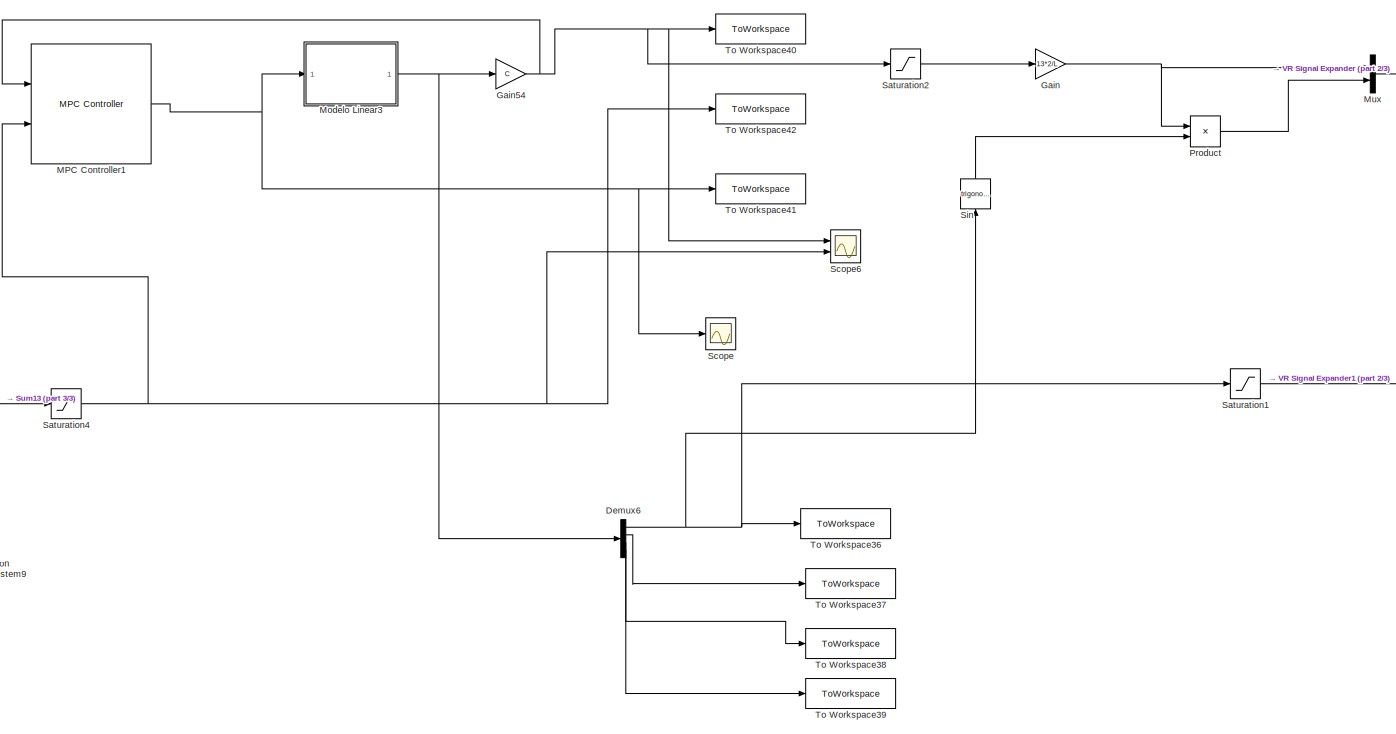
[diagram: root canvas - part 1/3, center side, full height]
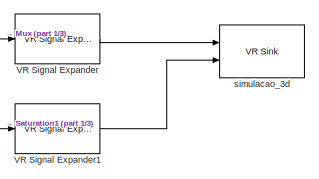
[diagram: root canvas - part 2/3, top right region]
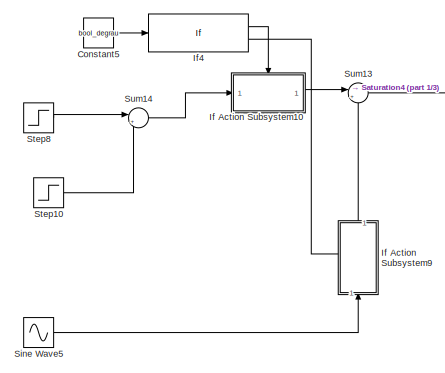
[diagram: root canvas - part 3/3, bottom left region]
MODEL slx_e6d9b0cb61ab
KIND model
CONFIG AbsTol = auto
CONFIG EnableMultiTasking = off
CONFIG FixedStep = auto
CONFIG MaxStep = auto
CONFIG MinStep = auto
CONFIG RelTol = 1e-3
CONFIG SampleTimeConstraint = Unconstrained
CONFIG SolverName = VariableStepAuto
CONFIG StartTime = 0
CONFIG StopTime = 100
BLOCK [Constant] Constant5
  Value = bool_degrau
BLOCK [Demux] Demux6
  Ports = [1, 4]
BLOCK [Gain] Gain
  Gain = 13*2/L
BLOCK [Gain] Gain54
  Gain = C
  Multiplication = Matrix(K*u)
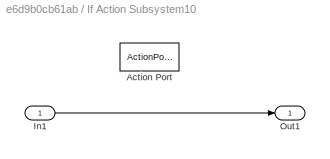
BLOCK [SubSystem] If Action Subsystem10
  Ports = [1, 1, 0, 0, 0, 0, 0, 1]
  RequestExecContextInheritance = off
  TreatAsAtomicUnit = on
BLOCK [ActionPort] If Action Subsystem10/Action Port
  ActionPortLabel = if(u1 == 1)
BLOCK [Inport] If Action Subsystem10/In1
BLOCK [Outport] If Action Subsystem10/Out1
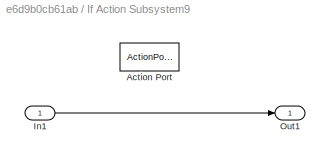
BLOCK [SubSystem] If Action Subsystem9
  NameLocation = right
  Ports = [1, 1, 0, 0, 0, 0, 0, 1]
  RequestExecContextInheritance = off
  TreatAsAtomicUnit = on
BLOCK [ActionPort] If Action Subsystem9/Action Port
  ActionPortLabel = else
BLOCK [Inport] If Action Subsystem9/In1
BLOCK [Outport] If Action Subsystem9/Out1
BLOCK [If] If4
  IfExpression = u1 == 1
  Ports = [1, 2]
BLOCK [Reference] MPC Controller1  REF=mpclib/MPC Controller  (lib defined in mdl_ae329e0e0455)
  Ports = [2, 1]
  SCDEnableBlockLinearizationSpecification = on
  SourceBlock = mpclib/MPC Controller
  SourceProductBaseCode = MP
  SourceType = MPC
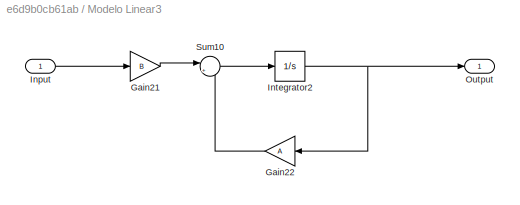
BLOCK [SubSystem] Modelo Linear3
  Ports = [1, 1]
  RequestExecContextInheritance = off
BLOCK [Gain] Modelo Linear3/Gain21
  Gain = B
  Multiplication = Matrix(K*u)
BLOCK [Gain] Modelo Linear3/Gain22
  Gain = A
  Multiplication = Matrix(K*u)
  NameLocation = top
BLOCK [Inport] Modelo Linear3/Input
BLOCK [Integrator] Modelo Linear3/Integrator2
  Ports = [1, 1]
BLOCK [Outport] Modelo Linear3/Output
BLOCK [Sum] Modelo Linear3/Sum10
  Inputs = |++
  Ports = [2, 1]
BLOCK [Mux] Mux
  DisplayOption = bar
  Inputs = 2
  Ports = [2, 1]
BLOCK [Product] Product
  Ports = [2, 1]
BLOCK [Saturate] Saturation1
  LowerLimit = -0.8
  UpperLimit = 0.8
BLOCK [Saturate] Saturation2
  LowerLimit = 0
  UpperLimit = L/2
BLOCK [Saturate] Saturation4
  LowerLimit = -L/2
  UpperLimit = L/2
BLOCK [Scope] Scope
  Floating = off
  NumInputPorts = 1
  Ports = [1]
  ScopeSpecificationString = Simulink.scopes.TimeScopeBlockCfg('CurrentConfiguration', extmgr.ConfigurationSet(extmgr.Configuration('Core','General UI',true),extmgr.Configuration('Core','Source UI',true),extmgr.Configuration('Sources','WiredSimulink',true,'DataLoggingVariableName','ScopeData1'),extmgr.Configuration('Visuals','Time Domain',true,'SerializedDisplays',{struct('MinYLimReal','-0.5832','MaxYLimReal','1.01571','YLabe...<+1445ch>
BLOCK [Scope] Scope6
  Floating = off
  NumInputPorts = 2
  Ports = [2]
  ScopeSpecificationString = Simulink.scopes.TimeScopeBlockCfg('CurrentConfiguration', extmgr.ConfigurationSet(extmgr.Configuration('Core','General UI',true),extmgr.Configuration('Core','Source UI',true),extmgr.Configuration('Sources','WiredSimulink',true),extmgr.Configuration('Visuals','Time Domain',true,'SerializedDisplays',{struct('MinYLimReal','-0.03049','MaxYLimReal','0.2744','YLabelReal','','MinYLimMag','0.00000','MaxYL...<+1365ch>
BLOCK [Trigonometry] Sin
  NameLocation = right
  Ports = [1, 1]
BLOCK [Sin] Sine Wave5
  Amplitude = amplitude_entrada
  Frequency = 0.1
  Ports = [0, 1]
  SampleTime = 0
BLOCK [Step] Step10
  After = -2*amplitude_entrada
  SampleTime = 0
  Time = 100
BLOCK [Step] Step8
  After = amplitude_entrada
  SampleTime = 0
BLOCK [Sum] Sum13
  Inputs = |++
  Ports = [2, 1]
BLOCK [Sum] Sum14
  Inputs = |++
  Ports = [2, 1]
BLOCK [ToWorkspace] To Workspace36
  FixptAsFi = on
  MaxDataPoints = inf
  Ports = [1]
  SampleTime = -1
  SaveFormat = Timeseries
  VariableName = output_estados_1
BLOCK [ToWorkspace] To Workspace37
  FixptAsFi = on
  MaxDataPoints = inf
  Ports = [1]
  SampleTime = -1
  SaveFormat = Timeseries
  VariableName = output_estados_2
BLOCK [ToWorkspace] To Workspace38
  FixptAsFi = on
  MaxDataPoints = inf
  Ports = [1]
  SampleTime = -1
  SaveFormat = Timeseries
  VariableName = output_estados_3
BLOCK [ToWorkspace] To Workspace39
  FixptAsFi = on
  MaxDataPoints = inf
  Ports = [1]
  SampleTime = -1
  SaveFormat = Timeseries
  VariableName = output_estados_4
BLOCK [ToWorkspace] To Workspace40
  FixptAsFi = on
  MaxDataPoints = inf
  Ports = [1]
  SampleTime = -1
  SaveFormat = Timeseries
  VariableName = y_output
BLOCK [ToWorkspace] To Workspace41
  FixptAsFi = on
  MaxDataPoints = inf
  Ports = [1]
  SampleTime = -1
  SaveFormat = Timeseries
  VariableName = acao_controle
BLOCK [ToWorkspace] To Workspace42
  FixptAsFi = on
  MaxDataPoints = inf
  Ports = [1]
  SampleTime = -1
  SaveFormat = Timeseries
  VariableName = u_output
BLOCK [Reference] VR Signal Expander  REF=vrlib/VR Signal Expander
  Ports = [1, 1]
  SourceBlock = vrlib/VR Signal Expander
  SourceProductBaseCode = SL
  SourceType = VR Signal Expander
BLOCK [Reference] VR Signal Expander1  REF=vrlib/VR Signal Expander
  Ports = [1, 1]
  SourceBlock = vrlib/VR Signal Expander
  SourceProductBaseCode = SL
  SourceType = VR Signal Expander
BLOCK [Reference] simulacao_3d  REF=vrlib/VR Sink
  InstantiateOnLoad = on
  Ports = [2]
  SourceBlock = vrlib/VR Sink
  SourceProductBaseCode = SL
  SourceType = Virtual Reality Sink
LINE Constant5:1 -> If4:1
NET Demux6:1 -> Saturation1:1, Sin:1, To Workspace36:1
LINE Demux6:2 -> To Workspace37:1
LINE Demux6:3 -> To Workspace38:1
LINE Demux6:4 -> To Workspace39:1
NET Gain54:1 -> MPC Controller1:1, Saturation2:1, Scope6:1, To Workspace40:1
NET Gain:1 -> Mux:1, Product:1
LINE If Action Subsystem10/In1:1 -> If Action Subsystem10/Out1:1
LINE If Action Subsystem10:1 -> Sum13:1
LINE If Action Subsystem9/In1:1 -> If Action Subsystem9/Out1:1
LINE If Action Subsystem9:1 -> Sum13:2
LINE If4:1 -> If Action Subsystem10:ifaction
LINE If4:2 -> If Action Subsystem9:ifaction
NET MPC Controller1:1 -> Modelo Linear3:1, Scope:1, To Workspace41:1
LINE Modelo Linear3/Gain21:1 -> Modelo Linear3/Sum10:1
LINE Modelo Linear3/Gain22:1 -> Modelo Linear3/Sum10:2
LINE Modelo Linear3/Input:1 -> Modelo Linear3/Gain21:1
NET Modelo Linear3/Integrator2:1 -> Modelo Linear3/Gain22:1, Modelo Linear3/Output:1
LINE Modelo Linear3/Sum10:1 -> Modelo Linear3/Integrator2:1
NET Modelo Linear3:1 -> Demux6:1, Gain54:1
LINE Mux:1 -> VR Signal Expander:1
LINE Product:1 -> Mux:2
LINE Saturation1:1 -> VR Signal Expander1:1
LINE Saturation2:1 -> Gain:1
NET Saturation4:1 -> MPC Controller1:2, Scope6:2, To Workspace42:1
LINE Sin:1 -> Product:2
LINE Sine Wave5:1 -> If Action Subsystem9:1
LINE Step10:1 -> Sum14:2
LINE Step8:1 -> Sum14:1
LINE Sum13:1 -> Saturation4:1
LINE Sum14:1 -> If Action Subsystem10:1
LINE VR Signal Expander1:1 -> simulacao_3d:2
LINE VR Signal Expander:1 -> simulacao_3d:1
note: NET lines group one-source signal fan-out (src -> all destinations, sorted); 1:1 wires keep LINE
